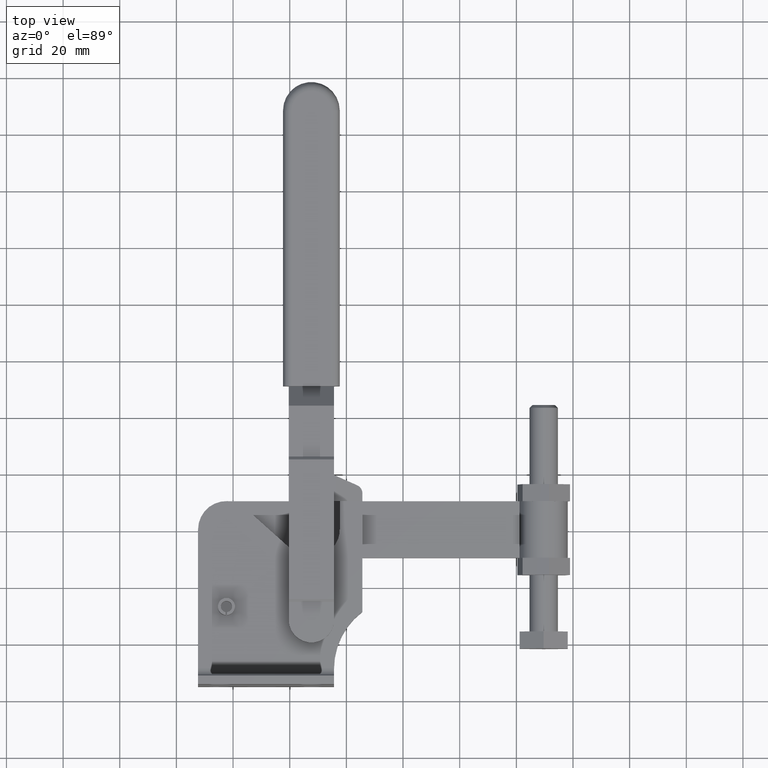
[diagram: clean part render]
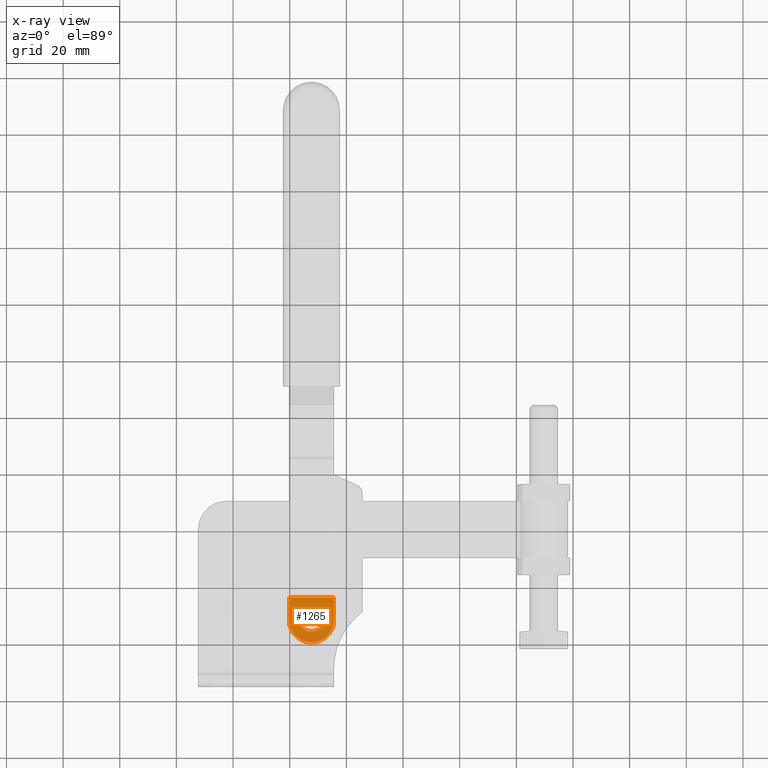
[diagram: x-ray — body ghosted, one internal face saturated and labeled with its STEP entity id]
A machine part, top view, then the same camera in x-ray: the body is ghosted and one INTERNAL B-rep face — a face not visible from any outside direction — is saturated and labeled: STEP entity #1265.
In plain terms, the highlighted face is a freeform B-spline surface patch.
Its self-contained STEP definition (entity closure, byte-faithful):
#90=CARTESIAN_POINT('',(-968.357969662263710,88.092249585627428,6.999999999999573));
#91=VERTEX_POINT('',#90);
#107=CARTESIAN_POINT('',(-976.357969662263490,88.092249585627357,6.999999999999571));
#108=VERTEX_POINT('',#107);
#115=CARTESIAN_POINT('',(-972.357969662263710,88.092249585627385,6.999999999999571));
#116=DIRECTION('',(0.0,0.0,-1.0));
#117=DIRECTION('',(1.0,0.0,0.0));
#118=AXIS2_PLACEMENT_3D('',#115,#116,#117);
#119=CIRCLE('',#118,4.0);
#120=EDGE_CURVE('',#108,#91,#119,.T.);
#1105=CARTESIAN_POINT('',(-980.357969660989510,96.092249585627329,6.999999999999568));
#1106=VERTEX_POINT('',#1105);
#1113=CARTESIAN_POINT('',(-980.357969660989400,88.092249585627300,6.999999999999568));
#1114=VERTEX_POINT('',#1113);
#1115=CARTESIAN_POINT('',(-980.357969660989510,96.092249585627329,6.999999999999568));
#1116=DIRECTION('',(0.0,-1.0,0.0));
#1117=VECTOR('',#1116,8.000000000000028);
#1118=LINE('',#1115,#1117);
#1119=EDGE_CURVE('',#1106,#1114,#1118,.T.);
#1204=CARTESIAN_POINT('',(-964.357969660989280,88.092249585627499,6.999999999999576));
#1205=VERTEX_POINT('',#1204);
#1222=CARTESIAN_POINT('',(-972.357969662263260,88.092249585627385,6.999999999999572));
#1223=DIRECTION('',(0.0,0.0,-1.0));
#1224=DIRECTION('',(1.0,0.0,0.0));
#1225=AXIS2_PLACEMENT_3D('',#1222,#1223,#1224);
#1226=CIRCLE('',#1225,7.999999999999941);
#1227=EDGE_CURVE('',#1205,#1114,#1226,.T.);
#1232=CARTESIAN_POINT('',(-980.357969662263370,96.092249585627513,6.999999999999568));
#1233=CARTESIAN_POINT('',(-964.357969660989280,96.092249585627698,6.999999999999576));
#1234=CARTESIAN_POINT('',(-980.357969662263140,80.092249585627258,6.999999999999568));
#1235=CARTESIAN_POINT('',(-964.357969660988940,80.092249585627457,6.999999999999576));
#1236=B_SPLINE_SURFACE_WITH_KNOTS('',1,1,((#1232,#1234),(#1233,#1235)),.UNSPECIFIED.,.F.,.F.,.U.,(2,2),(2,2),(0.0,16.000000001274088),(0.0,16.000000000000256),.UNSPECIFIED.);
#1237=CARTESIAN_POINT('',(-964.357969660989620,96.092249585627485,6.999999999999576));
#1238=VERTEX_POINT('',#1237);
#1239=CARTESIAN_POINT('',(-964.357969660989620,96.092249585627485,6.999999999999576));
#1240=DIRECTION('',(-1.0,0.0,0.0));
#1241=VECTOR('',#1240,15.999999999999886);
#1242=LINE('',#1239,#1241);
#1243=EDGE_CURVE('',#1238,#1106,#1242,.T.);
#1244=ORIENTED_EDGE('',*,*,#1243,.F.);
#1245=CARTESIAN_POINT('',(-964.357969660989280,88.092249585627499,6.999999999999576));
#1246=DIRECTION('',(0.0,1.0,0.0));
#1247=VECTOR('',#1246,7.999999999999986);
#1248=LINE('',#1245,#1247);
#1249=EDGE_CURVE('',#1205,#1238,#1248,.T.);
#1250=ORIENTED_EDGE('',*,*,#1249,.F.);
#1251=ORIENTED_EDGE('',*,*,#1227,.T.);
#1252=ORIENTED_EDGE('',*,*,#1119,.F.);
#1253=EDGE_LOOP('',(#1244,#1250,#1251,#1252));
#1254=FACE_OUTER_BOUND('',#1253,.T.);
#1255=ORIENTED_EDGE('',*,*,#120,.F.);
#1256=CARTESIAN_POINT('',(-972.357969662263710,88.092249585627385,6.999999999999571));
#1257=DIRECTION('',(0.0,0.0,-1.0));
#1258=DIRECTION('',(1.0,0.0,0.0));
#1259=AXIS2_PLACEMENT_3D('',#1256,#1257,#1258);
#1260=CIRCLE('',#1259,4.0);
#1261=EDGE_CURVE('',#91,#108,#1260,.T.);
#1262=ORIENTED_EDGE('',*,*,#1261,.F.);
#1263=EDGE_LOOP('',(#1255,#1262));
#1264=FACE_BOUND('',#1263,.T.);
#1265=ADVANCED_FACE('',(#1254,#1264),#1236,.T.);